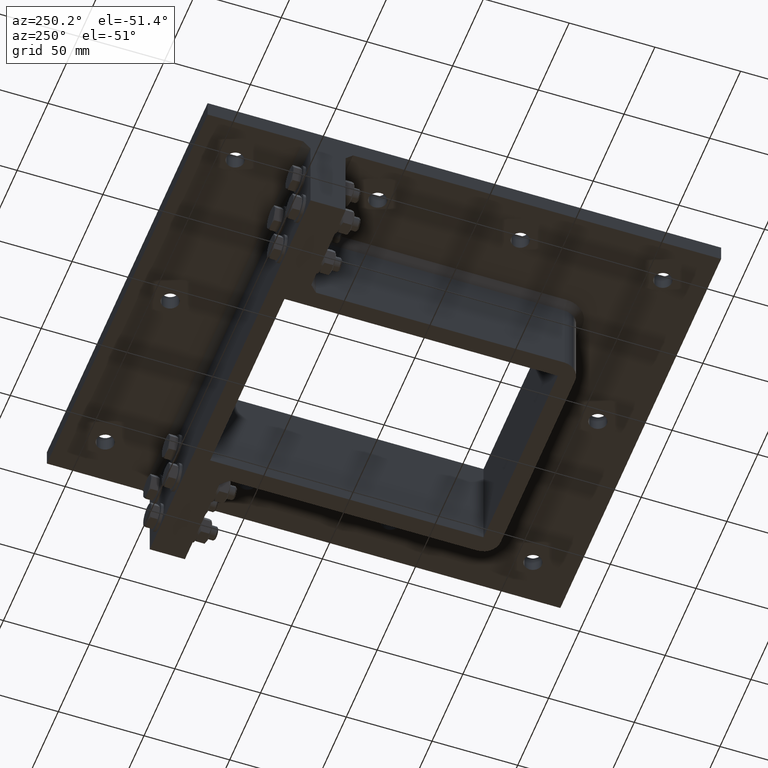
[diagram: clean part render]
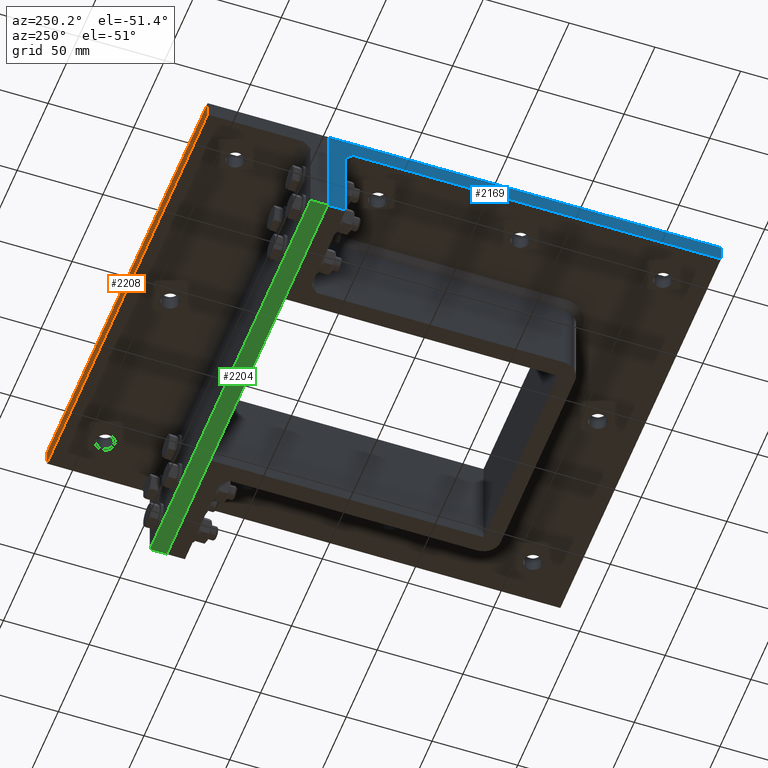
[diagram: same view with three faces highlighted in distinct colors, each labeled with its STEP entity id]
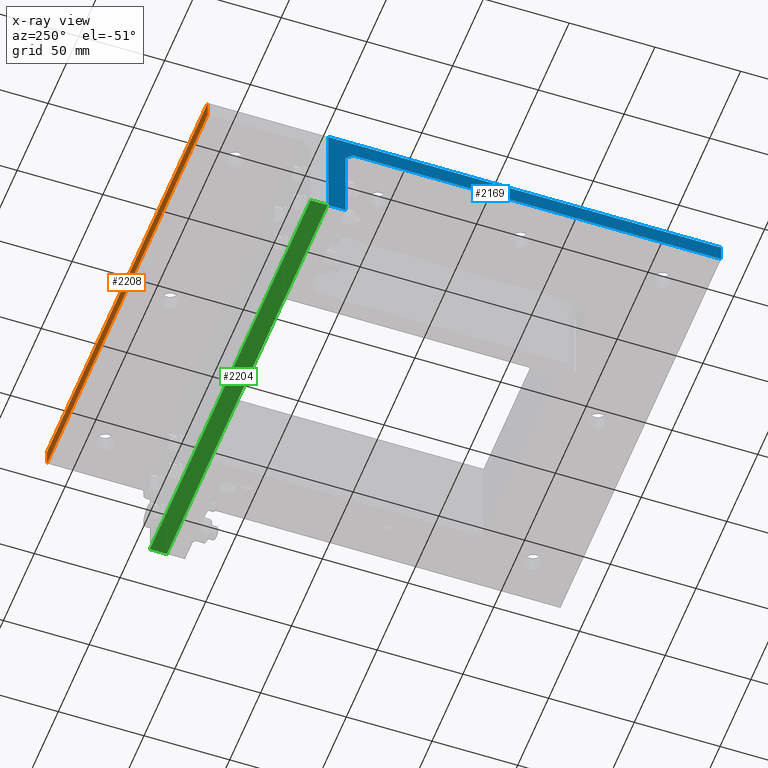
[diagram: x-ray of the same camera — body ghosted, the three highlighted faces saturated]
A machine part, auxiliary view with three faces highlighted in distinct colors.
The next image is the same camera in x-ray (body ghosted, the three faces saturated) — at least one of them is partly hidden behind the body in this view.
Their STEP definitions:

[orange] entity #2208 — the highlighted planar face has unit normal (-0, 1, 0).
#416=FACE_OUTER_BOUND('',#580,.T.);
#580=EDGE_LOOP('',(#1818,#1819,#1820,#1821));
#764=LINE('',#3638,#936);
#768=LINE('',#3651,#940);
#772=LINE('',#3658,#944);
#773=LINE('',#3666,#945);
#936=VECTOR('',#2993,10.);
#940=VECTOR('',#3005,10.);
#944=VECTOR('',#3011,10.);
#945=VECTOR('',#3020,10.);
#1109=VERTEX_POINT('',#3635);
#1110=VERTEX_POINT('',#3637);
#1115=VERTEX_POINT('',#3649);
#1117=VERTEX_POINT('',#3656);
#1349=EDGE_CURVE('',#1109,#1110,#764,.T.);
#1356=EDGE_CURVE('',#1109,#1115,#768,.T.);
#1360=EDGE_CURVE('',#1117,#1115,#772,.T.);
#1364=EDGE_CURVE('',#1110,#1117,#773,.T.);
#1818=ORIENTED_EDGE('',*,*,#1349,.F.);
#1819=ORIENTED_EDGE('',*,*,#1356,.T.);
#1820=ORIENTED_EDGE('',*,*,#1360,.F.);
#1821=ORIENTED_EDGE('',*,*,#1364,.F.);
#2112=PLANE('',#2558);
#2208=ADVANCED_FACE('',(#416),#2112,.T.);
#2558=AXIS2_PLACEMENT_3D('',#3678,#3035,#3036);
#2993=DIRECTION('',(-1.,-1.36380563485624E-16,0.));
#3005=DIRECTION('',(0.,0.,-1.));
#3011=DIRECTION('',(1.,1.36380563485624E-16,0.));
#3020=DIRECTION('',(0.,0.,-1.));
#3035=DIRECTION('center_axis',(-1.36380563485624E-16,1.,0.));
#3036=DIRECTION('ref_axis',(1.,1.36380563485624E-16,0.));
#3635=CARTESIAN_POINT('',(130.25,149.75,0.));
#3637=CARTESIAN_POINT('',(-130.25,149.75,0.));
#3638=CARTESIAN_POINT('',(130.25,149.75,0.));
#3649=CARTESIAN_POINT('',(130.25,149.75,-10.));
#3651=CARTESIAN_POINT('',(130.25,149.75,0.));
#3656=CARTESIAN_POINT('',(-130.25,149.75,-10.));
#3658=CARTESIAN_POINT('',(130.25,149.75,-10.));
#3666=CARTESIAN_POINT('',(-130.25,149.75,0.));
#3678=CARTESIAN_POINT('Origin',(-130.25,149.75,0.));

[blue] entity #2169 — the highlighted planar face has unit normal (-1, -0, 0).
#377=FACE_OUTER_BOUND('',#512,.T.);
#512=EDGE_LOOP('',(#1605,#1606,#1607,#1608,#1609,#1610,#1611));
#671=LINE('',#3345,#843);
#696=LINE('',#3402,#868);
#700=LINE('',#3417,#872);
#715=LINE('',#3487,#887);
#716=LINE('',#3489,#888);
#717=LINE('',#3491,#889);
#718=LINE('',#3492,#890);
#843=VECTOR('',#2688,10.);
#868=VECTOR('',#2741,10.);
#872=VECTOR('',#2755,10.);
#887=VECTOR('',#2830,10.);
#888=VECTOR('',#2831,10.);
#889=VECTOR('',#2832,10.);
#890=VECTOR('',#2833,10.);
#1015=VERTEX_POINT('',#3343);
#1016=VERTEX_POINT('',#3344);
#1034=VERTEX_POINT('',#3401);
#1040=VERTEX_POINT('',#3415);
#1065=VERTEX_POINT('',#3486);
#1066=VERTEX_POINT('',#3488);
#1067=VERTEX_POINT('',#3490);
#1204=EDGE_CURVE('',#1015,#1016,#671,.T.);
#1233=EDGE_CURVE('',#1016,#1034,#696,.T.);
#1241=EDGE_CURVE('',#1040,#1015,#700,.T.);
#1275=EDGE_CURVE('',#1065,#1040,#715,.T.);
#1276=EDGE_CURVE('',#1066,#1065,#716,.T.);
#1277=EDGE_CURVE('',#1066,#1067,#717,.T.);
#1278=EDGE_CURVE('',#1034,#1067,#718,.T.);
#1605=ORIENTED_EDGE('',*,*,#1241,.F.);
#1606=ORIENTED_EDGE('',*,*,#1275,.F.);
#1607=ORIENTED_EDGE('',*,*,#1276,.F.);
#1608=ORIENTED_EDGE('',*,*,#1277,.T.);
#1609=ORIENTED_EDGE('',*,*,#1278,.F.);
#1610=ORIENTED_EDGE('',*,*,#1233,.F.);
#1611=ORIENTED_EDGE('',*,*,#1204,.F.);
#2093=PLANE('',#2487);
#2169=ADVANCED_FACE('',(#377),#2093,.T.);
#2487=AXIS2_PLACEMENT_3D('',#3485,#2828,#2829);
#2688=DIRECTION('',(-1.67756122463709E-16,0.707106781186547,-0.707106781186548));
#2741=DIRECTION('',(0.,0.,-1.));
#2755=DIRECTION('',(-2.37242983559299E-16,1.,0.));
#2828=DIRECTION('center_axis',(-1.,-2.37242983559299E-16,0.));
#2829=DIRECTION('ref_axis',(-2.37242983559299E-16,1.,0.));
#2830=DIRECTION('',(0.,0.,-1.));
#2831=DIRECTION('',(2.37242983559299E-16,-1.,0.));
#2832=DIRECTION('',(0.,0.,-1.));
#2833=DIRECTION('',(0.,1.,0.));
#3343=CARTESIAN_POINT('',(-130.25,64.95,-10.));
#3344=CARTESIAN_POINT('',(-130.25,69.25,-14.3));
#3345=CARTESIAN_POINT('',(-130.25,9.85000000000003,45.1));
#3401=CARTESIAN_POINT('',(-130.25,69.25,-60.));
#3402=CARTESIAN_POINT('',(-130.25,69.25,0.));
#3415=CARTESIAN_POINT('',(-130.25,-149.75,-10.));
#3417=CARTESIAN_POINT('',(-130.25,149.75,-10.));
#3485=CARTESIAN_POINT('Origin',(-130.25,-149.75,0.));
#3486=CARTESIAN_POINT('',(-130.25,-149.75,0.));
#3487=CARTESIAN_POINT('',(-130.25,-149.75,0.));
#3488=CARTESIAN_POINT('',(-130.25,79.25,0.));
#3489=CARTESIAN_POINT('',(-130.25,149.75,0.));
#3490=CARTESIAN_POINT('',(-130.25,79.25,-60.));
#3491=CARTESIAN_POINT('',(-130.25,79.25,0.));
#3492=CARTESIAN_POINT('',(-130.25,79.25,-60.));

[green] entity #2204 — the highlighted planar face has unit normal (0, 0, 1).
#412=FACE_OUTER_BOUND('',#576,.T.);
#576=EDGE_LOOP('',(#1802,#1803,#1804,#1805));
#753=LINE('',#3583,#925);
#770=LINE('',#3654,#942);
#774=LINE('',#3668,#946);
#776=LINE('',#3671,#948);
#925=VECTOR('',#2932,10.);
#942=VECTOR('',#3007,10.);
#946=VECTOR('',#3021,10.);
#948=VECTOR('',#3025,10.);
#1090=VERTEX_POINT('',#3580);
#1091=VERTEX_POINT('',#3582);
#1116=VERTEX_POINT('',#3652);
#1121=VERTEX_POINT('',#3667);
#1322=EDGE_CURVE('',#1091,#1090,#753,.T.);
#1358=EDGE_CURVE('',#1090,#1116,#770,.T.);
#1365=EDGE_CURVE('',#1121,#1091,#774,.T.);
#1367=EDGE_CURVE('',#1116,#1121,#776,.T.);
#1802=ORIENTED_EDGE('',*,*,#1367,.T.);
#1803=ORIENTED_EDGE('',*,*,#1365,.T.);
#1804=ORIENTED_EDGE('',*,*,#1322,.T.);
#1805=ORIENTED_EDGE('',*,*,#1358,.T.);
#2111=PLANE('',#2554);
#2204=ADVANCED_FACE('',(#412),#2111,.F.);
#2554=AXIS2_PLACEMENT_3D('',#3670,#3023,#3024);
#2932=DIRECTION('',(1.,1.36380563485624E-16,0.));
#3007=DIRECTION('',(0.,-1.,0.));
#3021=DIRECTION('',(0.,1.,0.));
#3023=DIRECTION('center_axis',(0.,0.,1.));
#3024=DIRECTION('ref_axis',(1.,0.,0.));
#3025=DIRECTION('',(-1.,0.,0.));
#3580=CARTESIAN_POINT('',(130.25,89.75,-60.));
#3582=CARTESIAN_POINT('',(-130.25,89.75,-60.));
#3583=CARTESIAN_POINT('',(-130.25,89.75,-60.));
#3652=CARTESIAN_POINT('',(130.25,79.75,-60.));
#3654=CARTESIAN_POINT('',(130.25,89.75,-60.));
#3667=CARTESIAN_POINT('',(-130.25,79.75,-60.));
#3668=CARTESIAN_POINT('',(-130.25,79.75,-60.));
#3670=CARTESIAN_POINT('Origin',(-1.33226762955019E-14,1.77635683940025E-14,
-60.));
#3671=CARTESIAN_POINT('',(130.25,79.75,-60.));